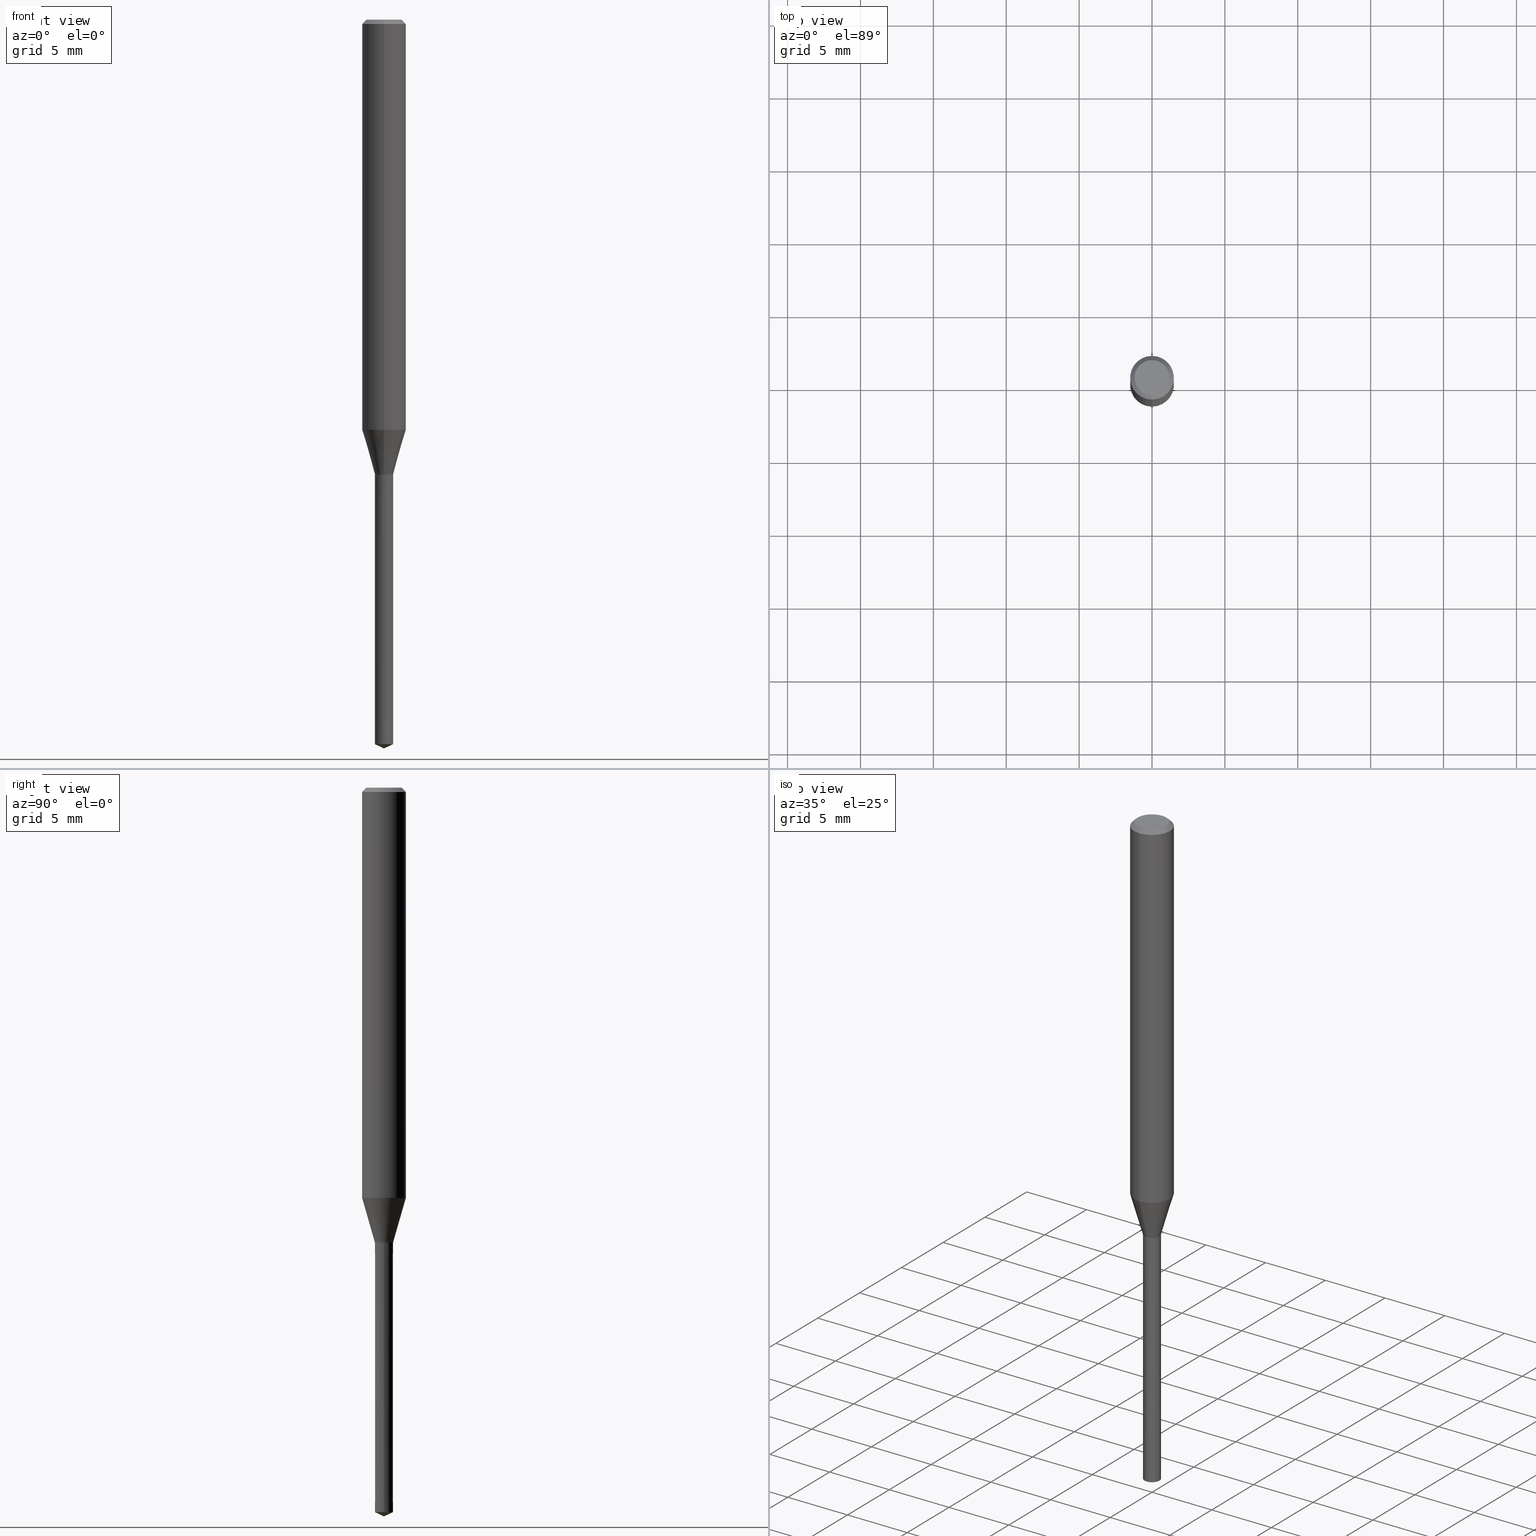
[diagram: canonical four-view strip — front | top / right | iso, engineering-drawing reading convention]
A machine part, canonical four-view strip (front | top / right | iso — engineering-drawing reading convention). The complete STEP part file that produces these views, byte-faithful:
ISO-10303-21;
HEADER;
FILE_DESCRIPTION(('no description'),'unknown implementation level');
FILE_NAME('UTDLX2125-188-Huellk.stp','  ',('CIMSOURCE GmbH'),('CADClick - KiM GmbH - www.kimweb.de'),'unknown preprocess','ACIS','unknown authorization');
FILE_SCHEMA(('automotive_design'));
ENDSEC;
DATA;
#1=MECHANICAL_DESIGN_GEOMETRIC_PRESENTATION_REPRESENTATION(' ',(#14,#15,#16,#17,#18,#19,#20,#21,#22,#23,#24,#25,#26,#27,#28,#29,#30,#31,#32,#33,#34,#35,#36,#37,#38,#39,#40,#41,#42,#43,#44,#45,#46,#47,#48,#49,#50,#51,#52,#53,#54,#55,#56,#57,#58,#59,#60,#61,#62,#63,#64,#65,#66,#67,#68,#69,#70,#71),#10);
#2=PRODUCT_DEFINITION_CONTEXT('',#72,'design');
#3=APPLICATION_PROTOCOL_DEFINITION('INTERNATIONAL STANDARD','automotive_design',1994,#72);
#4=PRODUCT_CATEGORY_RELATIONSHIP('NONE','NONE',#73,#74);
#5=SHAPE_DEFINITION_REPRESENTATION(#75,#76);
#6=PRODUCT_DEFINITION_CONTEXT('',#77,'design');
#7=APPLICATION_PROTOCOL_DEFINITION('INTERNATIONAL STANDARD','automotive_design',1994,#77);
#8=PRODUCT_CATEGORY_RELATIONSHIP('NONE','NONE',#78,#79);
#9=SHAPE_DEFINITION_REPRESENTATION(#80,#81);
#10= (GEOMETRIC_REPRESENTATION_CONTEXT(3)GLOBAL_UNCERTAINTY_ASSIGNED_CONTEXT((#84))GLOBAL_UNIT_ASSIGNED_CONTEXT((#86,#87,#88))REPRESENTATION_CONTEXT('NONE','WORKSPACE'));
#14=STYLED_ITEM('',(#90),#91);
#15=STYLED_ITEM('',(#92),#93);
#16=STYLED_ITEM('',(#94),#95);
#17=STYLED_ITEM('',(#96),#97);
#18=STYLED_ITEM('',(#98),#99);
#19=STYLED_ITEM('',(#100),#101);
#20=STYLED_ITEM('',(#102),#103);
#21=STYLED_ITEM('',(#104),#105);
#22=STYLED_ITEM('',(#106),#107);
#23=STYLED_ITEM('',(#108),#109);
#24=STYLED_ITEM('',(#110),#111);
#25=STYLED_ITEM('',(#112),#113);
#26=STYLED_ITEM('',(#114),#115);
#27=STYLED_ITEM('',(#116),#117);
#28=STYLED_ITEM('',(#118),#119);
#29=STYLED_ITEM('',(#120),#121);
#30=STYLED_ITEM('',(#122),#123);
#31=STYLED_ITEM('',(#124),#125);
#32=STYLED_ITEM('',(#126),#127);
#33=STYLED_ITEM('',(#128),#129);
#34=STYLED_ITEM('',(#130),#131);
#35=STYLED_ITEM('',(#132),#133);
#36=STYLED_ITEM('',(#134),#135);
#37=STYLED_ITEM('',(#136),#137);
#38=STYLED_ITEM('',(#138),#139);
#39=STYLED_ITEM('',(#140),#141);
#40=STYLED_ITEM('',(#142),#143);
#41=STYLED_ITEM('',(#144),#145);
#42=STYLED_ITEM('',(#146),#147);
#43=STYLED_ITEM('',(#148),#149);
#44=STYLED_ITEM('',(#150),#151);
#45=STYLED_ITEM('',(#152),#153);
#46=STYLED_ITEM('',(#154),#155);
#47=STYLED_ITEM('',(#156),#157);
#48=STYLED_ITEM('',(#158),#159);
#49=STYLED_ITEM('',(#160),#161);
#50=STYLED_ITEM('',(#162),#163);
#51=STYLED_ITEM('',(#164),#165);
#52=STYLED_ITEM('',(#166),#167);
#53=STYLED_ITEM('',(#168),#169);
#54=STYLED_ITEM('',(#170),#171);
#55=STYLED_ITEM('',(#172),#173);
#56=STYLED_ITEM('',(#174),#175);
#57=STYLED_ITEM('',(#176),#177);
#58=STYLED_ITEM('',(#178),#179);
#59=STYLED_ITEM('',(#180),#181);
#60=STYLED_ITEM('',(#182),#183);
#61=STYLED_ITEM('',(#184),#185);
#62=STYLED_ITEM('',(#186),#187);
#63=STYLED_ITEM('',(#188),#189);
#64=STYLED_ITEM('',(#190),#191);
#65=STYLED_ITEM('',(#192),#193);
#66=STYLED_ITEM('',(#194),#195);
#67=STYLED_ITEM('',(#196),#197);
#68=STYLED_ITEM('',(#198),#199);
#69=STYLED_ITEM('',(#200),#201);
#70=STYLED_ITEM('',(#202),#203);
#71=STYLED_ITEM('',(#204),#205);
#72=APPLICATION_CONTEXT(' ');
#73=PRODUCT_CATEGORY('part','NONE');
#74=PRODUCT_RELATED_PRODUCT_CATEGORY('detail',' ',(#206));
#75=PRODUCT_DEFINITION_SHAPE('NONE','NONE',#207);
#76=ADVANCED_BREP_SHAPE_REPRESENTATION('1',(#123,#208),#10);
#77=APPLICATION_CONTEXT(' ');
#78=PRODUCT_CATEGORY('part','NONE');
#79=PRODUCT_RELATED_PRODUCT_CATEGORY('detail',' ',(#209));
#80=PRODUCT_DEFINITION_SHAPE('NONE','NONE',#210);
#81=ADVANCED_BREP_SHAPE_REPRESENTATION('2',(#151,#211),#10);
#84=UNCERTAINTY_MEASURE_WITH_UNIT(LENGTH_MEASURE(1.0E-006),#86,'','');
#86= (CONVERSION_BASED_UNIT('MILLIMETRE',#214)LENGTH_UNIT()NAMED_UNIT(#217));
#87= (NAMED_UNIT(#219)PLANE_ANGLE_UNIT()SI_UNIT($,.RADIAN.));
#88= (NAMED_UNIT(#219)SOLID_ANGLE_UNIT()SI_UNIT($,.STERADIAN.));
#90=PRESENTATION_STYLE_ASSIGNMENT((#225));
#91=ADVANCED_FACE('',(#226),#227,.T.);
#92=PRESENTATION_STYLE_ASSIGNMENT((#228));
#93=EDGE_CURVE('',#191,#111,#229,.T.);
#94=PRESENTATION_STYLE_ASSIGNMENT((#230));
#95=EDGE_CURVE('',#131,#133,#231,.T.);
#96=PRESENTATION_STYLE_ASSIGNMENT((#232));
#97=ADVANCED_FACE('',(#233),#234,.T.);
#98=PRESENTATION_STYLE_ASSIGNMENT((#235));
#99=EDGE_CURVE('',#115,#131,#236,.T.);
#100=PRESENTATION_STYLE_ASSIGNMENT((#237));
#101=VERTEX_POINT('',#238);
#102=PRESENTATION_STYLE_ASSIGNMENT((#239));
#103=VERTEX_POINT('',#240);
#104=PRESENTATION_STYLE_ASSIGNMENT((#241));
#105=ADVANCED_FACE('',(#242),#243,.T.);
#106=PRESENTATION_STYLE_ASSIGNMENT((#244));
#107=EDGE_CURVE('',#149,#103,#245,.T.);
#108=PRESENTATION_STYLE_ASSIGNMENT((#246));
#109=ADVANCED_FACE('',(#247),#248,.T.);
#110=PRESENTATION_STYLE_ASSIGNMENT((#249));
#111=VERTEX_POINT('',#250);
#112=PRESENTATION_STYLE_ASSIGNMENT((#251));
#113=ADVANCED_FACE('',(#252),#253,.T.);
#114=PRESENTATION_STYLE_ASSIGNMENT((#254));
#115=VERTEX_POINT('',#255);
#116=PRESENTATION_STYLE_ASSIGNMENT((#256));
#117=EDGE_CURVE('',#115,#193,#257,.T.);
#118=PRESENTATION_STYLE_ASSIGNMENT((#258));
#119=VERTEX_POINT('',#259);
#120=PRESENTATION_STYLE_ASSIGNMENT((#260));
#121=EDGE_CURVE('',#203,#115,#261,.T.);
#122=PRESENTATION_STYLE_ASSIGNMENT((#262));
#123=MANIFOLD_SOLID_BREP('1',#263);
#124=PRESENTATION_STYLE_ASSIGNMENT((#264));
#125=EDGE_CURVE('',#205,#179,#265,.T.);
#126=PRESENTATION_STYLE_ASSIGNMENT((#266));
#127=EDGE_CURVE('',#179,#205,#267,.T.);
#128=PRESENTATION_STYLE_ASSIGNMENT((#268));
#129=EDGE_CURVE('',#103,#111,#269,.T.);
#130=PRESENTATION_STYLE_ASSIGNMENT((#270));
#131=VERTEX_POINT('',#271);
#132=PRESENTATION_STYLE_ASSIGNMENT((#272));
#133=VERTEX_POINT('',#273);
#134=PRESENTATION_STYLE_ASSIGNMENT((#274));
#135=EDGE_CURVE('',#205,#203,#275,.T.);
#136=PRESENTATION_STYLE_ASSIGNMENT((#276));
#137=ADVANCED_FACE('',(#277),#278,.T.);
#138=PRESENTATION_STYLE_ASSIGNMENT((#279));
#139=EDGE_CURVE('',#119,#203,#280,.T.);
#140=PRESENTATION_STYLE_ASSIGNMENT((#281));
#141=ADVANCED_FACE('',(#282),#283,.T.);
#142=PRESENTATION_STYLE_ASSIGNMENT((#284));
#143=EDGE_CURVE('',#181,#131,#285,.T.);
#144=PRESENTATION_STYLE_ASSIGNMENT((#286));
#145=EDGE_CURVE('',#111,#191,#287,.T.);
#146=PRESENTATION_STYLE_ASSIGNMENT((#288));
#147=EDGE_CURVE('',#181,#193,#289,.T.);
#148=PRESENTATION_STYLE_ASSIGNMENT((#290));
#149=VERTEX_POINT('',#291);
#150=PRESENTATION_STYLE_ASSIGNMENT((#292));
#151=MANIFOLD_SOLID_BREP('2',#293);
#152=PRESENTATION_STYLE_ASSIGNMENT((#294));
#153=ADVANCED_FACE('',(#295),#296,.T.);
#154=PRESENTATION_STYLE_ASSIGNMENT((#297));
#155=EDGE_CURVE('',#191,#149,#298,.T.);
#156=PRESENTATION_STYLE_ASSIGNMENT((#299));
#157=EDGE_CURVE('',#193,#115,#300,.T.);
#158=PRESENTATION_STYLE_ASSIGNMENT((#301));
#159=ADVANCED_FACE('',(#302),#303,.T.);
#160=PRESENTATION_STYLE_ASSIGNMENT((#304));
#161=EDGE_CURVE('',#103,#149,#305,.T.);
#162=PRESENTATION_STYLE_ASSIGNMENT((#306));
#163=ADVANCED_FACE('',(#307),#308,.T.);
#164=PRESENTATION_STYLE_ASSIGNMENT((#309));
#165=ADVANCED_FACE('',(#310),#311,.T.);
#166=PRESENTATION_STYLE_ASSIGNMENT((#312));
#167=EDGE_CURVE('',#131,#181,#313,.T.);
#168=PRESENTATION_STYLE_ASSIGNMENT((#314));
#169=ADVANCED_FACE('',(#315),#316,.T.);
#170=PRESENTATION_STYLE_ASSIGNMENT((#317));
#171=ADVANCED_FACE('',(#318),#319,.T.);
#172=PRESENTATION_STYLE_ASSIGNMENT((#320));
#173=EDGE_CURVE('',#133,#101,#321,.T.);
#174=PRESENTATION_STYLE_ASSIGNMENT((#322));
#175=VERTEX_POINT('',#323);
#176=PRESENTATION_STYLE_ASSIGNMENT((#324));
#177=EDGE_CURVE('',#111,#175,#325,.T.);
#178=PRESENTATION_STYLE_ASSIGNMENT((#326));
#179=VERTEX_POINT('',#327);
#180=PRESENTATION_STYLE_ASSIGNMENT((#328));
#181=VERTEX_POINT('',#329);
#182=PRESENTATION_STYLE_ASSIGNMENT((#330));
#183=EDGE_CURVE('',#203,#119,#331,.T.);
#184=PRESENTATION_STYLE_ASSIGNMENT((#332));
#185=EDGE_CURVE('',#193,#119,#333,.T.);
#186=PRESENTATION_STYLE_ASSIGNMENT((#334));
#187=ADVANCED_FACE('',(#335),#336,.T.);
#188=PRESENTATION_STYLE_ASSIGNMENT((#337));
#189=EDGE_CURVE('',#101,#133,#338,.T.);
#190=PRESENTATION_STYLE_ASSIGNMENT((#339));
#191=VERTEX_POINT('',#340);
#192=PRESENTATION_STYLE_ASSIGNMENT((#341));
#193=VERTEX_POINT('',#342);
#194=PRESENTATION_STYLE_ASSIGNMENT((#343));
#195=EDGE_CURVE('',#119,#179,#344,.T.);
#196=PRESENTATION_STYLE_ASSIGNMENT((#345));
#197=EDGE_CURVE('',#175,#191,#346,.T.);
#198=PRESENTATION_STYLE_ASSIGNMENT((#347));
#199=ADVANCED_FACE('',(#348),#349,.T.);
#200=PRESENTATION_STYLE_ASSIGNMENT((#350));
#201=EDGE_CURVE('',#101,#181,#351,.T.);
#202=PRESENTATION_STYLE_ASSIGNMENT((#352));
#203=VERTEX_POINT('',#353);
#204=PRESENTATION_STYLE_ASSIGNMENT((#354));
#205=VERTEX_POINT('',#355);
#206=PRODUCT('1','1','PART-1-DESC',(#356));
#207=PRODUCT_DEFINITION('NONE','NONE',#357,#2);
#208=AXIS2_PLACEMENT_3D('',#358,#359,#360);
#209=PRODUCT('2','2','PART-2-DESC',(#361));
#210=PRODUCT_DEFINITION('NONE','NONE',#362,#6);
#211=AXIS2_PLACEMENT_3D('',#363,#364,#365);
#214=LENGTH_MEASURE_WITH_UNIT(LENGTH_MEASURE(1.0),#366);
#217=DIMENSIONAL_EXPONENTS(1.0,0.0,0.0,0.0,0.0,0.0,0.0);
#219=DIMENSIONAL_EXPONENTS(0.0,0.0,0.0,0.0,0.0,0.0,0.0);
#225=SURFACE_STYLE_USAGE(.BOTH.,#367);
#226=FACE_OUTER_BOUND('',#368,.T.);
#227=CONICAL_SURFACE('',#369,0.62525,0.52359877559836);
#228=CURVE_STYLE('',#370,POSITIVE_LENGTH_MEASURE(1.0E-006),#371);
#229=CIRCLE('',#372,0.625);
#230=CURVE_STYLE('',#373,POSITIVE_LENGTH_MEASURE(1.0E-006),#374);
#231=LINE('',#375,#376);
#232=SURFACE_STYLE_USAGE(.BOTH.,#377);
#233=FACE_OUTER_BOUND('',#378,.T.);
#234=CONICAL_SURFACE('',#379,1.0625,0.279370266681244);
#235=CURVE_STYLE('',#380,POSITIVE_LENGTH_MEASURE(1.0E-006),#381);
#236=LINE('',#382,#383);
#237=POINT_STYLE(' ',#384,POSITIVE_LENGTH_MEASURE(1.0E-006),#385);
#238=CARTESIAN_POINT('',(7.65991274315897E-017,-0.6255,-31.2));
#239=POINT_STYLE(' ',#386,POSITIVE_LENGTH_MEASURE(1.0E-006),#387);
#240=CARTESIAN_POINT('',(-0.626,0.0,-31.2));
#241=SURFACE_STYLE_USAGE(.BOTH.,#388);
#242=FACE_OUTER_BOUND('',#389,.T.);
#243=CONICAL_SURFACE('',#390,1.35,0.785398163397447);
#244=CURVE_STYLE('',#391,POSITIVE_LENGTH_MEASURE(1.0E-006),#392);
#245=CIRCLE('',#393,0.626);
#246=SURFACE_STYLE_USAGE(.BOTH.,#394);
#247=FACE_OUTER_BOUND('',#395,.T.);
#248=PLANE('',#396);
#249=POINT_STYLE(' ',#397,POSITIVE_LENGTH_MEASURE(1.0E-006),#398);
#250=CARTESIAN_POINT('',(-0.625,0.0,-49.70855771));
#251=SURFACE_STYLE_USAGE(.BOTH.,#399);
#252=FACE_OUTER_BOUND('',#400,.T.);
#253=CYLINDRICAL_SURFACE('',#401,1.5);
#254=POINT_STYLE(' ',#402,POSITIVE_LENGTH_MEASURE(1.0E-006),#403);
#255=CARTESIAN_POINT('',(0.0,1.5,-28.149));
#256=CURVE_STYLE('',#404,POSITIVE_LENGTH_MEASURE(1.0E-006),#405);
#257=CIRCLE('',#406,1.5);
#258=POINT_STYLE(' ',#407,POSITIVE_LENGTH_MEASURE(1.0E-006),#408);
#259=CARTESIAN_POINT('',(1.83690953073357E-016,-1.5,-0.300000000000001));
#260=CURVE_STYLE('',#409,POSITIVE_LENGTH_MEASURE(1.0E-006),#410);
#261=LINE('',#411,#412);
#262=SURFACE_STYLE_USAGE(.BOTH.,#413);
#263=CLOSED_SHELL('',(#165,#199,#113,#159,#171,#105,#187,#97,#91,#163));
#264=CURVE_STYLE('',#414,POSITIVE_LENGTH_MEASURE(1.0E-006),#415);
#265=CIRCLE('',#416,1.2);
#266=CURVE_STYLE('',#417,POSITIVE_LENGTH_MEASURE(1.0E-006),#418);
#267=CIRCLE('',#419,1.2);
#268=CURVE_STYLE('',#420,POSITIVE_LENGTH_MEASURE(1.0E-006),#421);
#269=LINE('',#422,#423);
#270=POINT_STYLE(' ',#424,POSITIVE_LENGTH_MEASURE(1.0E-006),#425);
#271=CARTESIAN_POINT('',(0.0,0.625,-31.1991339745962));
#272=POINT_STYLE(' ',#426,POSITIVE_LENGTH_MEASURE(1.0E-006),#427);
#273=CARTESIAN_POINT('',(0.0,0.6255,-31.2));
#274=CURVE_STYLE('',#428,POSITIVE_LENGTH_MEASURE(1.0E-006),#429);
#275=LINE('',#430,#431);
#276=SURFACE_STYLE_USAGE(.BOTH.,#432);
#277=FACE_OUTER_BOUND('',#433,.T.);
#278=CONICAL_SURFACE('',#434,0.3125,1.13446400899527);
#279=CURVE_STYLE('',#435,POSITIVE_LENGTH_MEASURE(1.0E-006),#436);
#280=CIRCLE('',#437,1.5);
#281=SURFACE_STYLE_USAGE(.BOTH.,#438);
#282=FACE_OUTER_BOUND('',#439,.T.);
#283=CONICAL_SURFACE('',#440,0.3125,1.13446400899527);
#284=CURVE_STYLE('',#441,POSITIVE_LENGTH_MEASURE(1.0E-006),#442);
#285=CIRCLE('',#443,0.625);
#286=CURVE_STYLE('',#444,POSITIVE_LENGTH_MEASURE(1.0E-006),#445);
#287=CIRCLE('',#446,0.625);
#288=CURVE_STYLE('',#447,POSITIVE_LENGTH_MEASURE(1.0E-006),#448);
#289=LINE('',#449,#450);
#290=POINT_STYLE(' ',#451,POSITIVE_LENGTH_MEASURE(1.0E-006),#452);
#291=CARTESIAN_POINT('',(0.626,7.66603577492808E-017,-31.2));
#292=SURFACE_STYLE_USAGE(.BOTH.,#453);
#293=CLOSED_SHELL('',(#137,#153,#109,#169,#141));
#294=SURFACE_STYLE_USAGE(.BOTH.,#454);
#295=FACE_OUTER_BOUND('',#455,.T.);
#296=CONICAL_SURFACE('',#456,0.6255,5.40290612966922E-005);
#297=CURVE_STYLE('',#457,POSITIVE_LENGTH_MEASURE(1.0E-006),#458);
#298=LINE('',#459,#460);
#299=CURVE_STYLE('',#461,POSITIVE_LENGTH_MEASURE(1.0E-006),#462);
#300=CIRCLE('',#463,1.5);
#301=SURFACE_STYLE_USAGE(.BOTH.,#464);
#302=FACE_OUTER_BOUND('',#465,.T.);
#303=CONICAL_SURFACE('',#466,1.35,0.785398163397447);
#304=CURVE_STYLE('',#467,POSITIVE_LENGTH_MEASURE(1.0E-006),#468);
#305=CIRCLE('',#469,0.626);
#306=SURFACE_STYLE_USAGE(.BOTH.,#470);
#307=FACE_OUTER_BOUND('',#471,.T.);
#308=PLANE('',#472);
#309=SURFACE_STYLE_USAGE(.BOTH.,#473);
#310=FACE_OUTER_BOUND('',#474,.T.);
#311=CONICAL_SURFACE('',#475,0.62525,0.52359877559836);
#312=CURVE_STYLE('',#476,POSITIVE_LENGTH_MEASURE(1.0E-006),#477);
#313=CIRCLE('',#478,0.625);
#314=SURFACE_STYLE_USAGE(.BOTH.,#479);
#315=FACE_OUTER_BOUND('',#480,.T.);
#316=CONICAL_SURFACE('',#481,0.6255,5.40290612966922E-005);
#317=SURFACE_STYLE_USAGE(.BOTH.,#482);
#318=FACE_OUTER_BOUND('',#483,.T.);
#319=PLANE('',#484);
#320=CURVE_STYLE('',#485,POSITIVE_LENGTH_MEASURE(1.0E-006),#486);
#321=CIRCLE('',#487,0.6255);
#322=POINT_STYLE(' ',#488,POSITIVE_LENGTH_MEASURE(1.0E-006),#489);
#323=CARTESIAN_POINT('',(0.0,0.0,-50.0));
#324=CURVE_STYLE('',#490,POSITIVE_LENGTH_MEASURE(1.0E-006),#491);
#325=LINE('',#492,#493);
#326=POINT_STYLE(' ',#494,POSITIVE_LENGTH_MEASURE(1.0E-006),#495);
#327=CARTESIAN_POINT('',(1.46952762458685E-016,-1.2,0.0));
#328=POINT_STYLE(' ',#496,POSITIVE_LENGTH_MEASURE(1.0E-006),#497);
#329=CARTESIAN_POINT('',(7.65378971138986E-017,-0.625,-31.1991339745962));
#330=CURVE_STYLE('',#498,POSITIVE_LENGTH_MEASURE(1.0E-006),#499);
#331=CIRCLE('',#500,1.5);
#332=CURVE_STYLE('',#501,POSITIVE_LENGTH_MEASURE(1.0E-006),#502);
#333=LINE('',#503,#504);
#334=SURFACE_STYLE_USAGE(.BOTH.,#505);
#335=FACE_OUTER_BOUND('',#506,.T.);
#336=CYLINDRICAL_SURFACE('',#507,1.5);
#337=CURVE_STYLE('',#508,POSITIVE_LENGTH_MEASURE(1.0E-006),#509);
#338=CIRCLE('',#510,0.6255);
#339=POINT_STYLE(' ',#511,POSITIVE_LENGTH_MEASURE(1.0E-006),#512);
#340=CARTESIAN_POINT('',(0.625,7.65378971138986E-017,-49.70855771));
#341=POINT_STYLE(' ',#513,POSITIVE_LENGTH_MEASURE(1.0E-006),#514);
#342=CARTESIAN_POINT('',(1.83690953073357E-016,-1.5,-28.149));
#343=CURVE_STYLE('',#515,POSITIVE_LENGTH_MEASURE(1.0E-006),#516);
#344=LINE('',#517,#518);
#345=CURVE_STYLE('',#519,POSITIVE_LENGTH_MEASURE(1.0E-006),#520);
#346=LINE('',#521,#522);
#347=SURFACE_STYLE_USAGE(.BOTH.,#523);
#348=FACE_OUTER_BOUND('',#524,.T.);
#349=CONICAL_SURFACE('',#525,1.0625,0.279370266681244);
#350=CURVE_STYLE('',#526,POSITIVE_LENGTH_MEASURE(1.0E-006),#527);
#351=LINE('',#528,#529);
#352=POINT_STYLE(' ',#530,POSITIVE_LENGTH_MEASURE(1.0E-006),#531);
#353=CARTESIAN_POINT('',(0.0,1.5,-0.300000000000001));
#354=POINT_STYLE(' ',#532,POSITIVE_LENGTH_MEASURE(1.0E-006),#533);
#355=CARTESIAN_POINT('',(0.0,1.2,0.0));
#356=PRODUCT_CONTEXT('',#72,'mechanical');
#357=PRODUCT_DEFINITION_FORMATION_WITH_SPECIFIED_SOURCE(' ','NONE',#206,.NOT_KNOWN.);
#358=CARTESIAN_POINT('',(0.0,0.0,0.0));
#359=DIRECTION('',(0.0,0.0,1.0));
#360=DIRECTION('',(1.0,0.0,0.0));
#361=PRODUCT_CONTEXT('',#77,'mechanical');
#362=PRODUCT_DEFINITION_FORMATION_WITH_SPECIFIED_SOURCE(' ','NONE',#209,.NOT_KNOWN.);
#363=CARTESIAN_POINT('',(0.0,0.0,0.0));
#364=DIRECTION('',(0.0,0.0,1.0));
#365=DIRECTION('',(1.0,0.0,0.0));
#366= (NAMED_UNIT(#217)LENGTH_UNIT()SI_UNIT(.MILLI.,.METRE.));
#367=SURFACE_SIDE_STYLE('',(#535));
#368=EDGE_LOOP('',(#536,#537,#538,#539));
#369=AXIS2_PLACEMENT_3D('',#540,#541,#542);
#370=DRAUGHTING_PRE_DEFINED_CURVE_FONT('continuous');
#371=COLOUR_RGB('',0.800000011920929,0.800000011920929,0.800000011920929);
#372=AXIS2_PLACEMENT_3D('',#543,#544,#545);
#373=DRAUGHTING_PRE_DEFINED_CURVE_FONT('continuous');
#374=COLOUR_RGB('',0.498039215803146,0.498039215803146,0.498039215803146);
#375=CARTESIAN_POINT('',(-7.65685122727442E-017,0.62525,-31.1995669872981));
#376=VECTOR('',#546,1.0);
#377=SURFACE_SIDE_STYLE('',(#547));
#378=EDGE_LOOP('',(#548,#549,#550,#551));
#379=AXIS2_PLACEMENT_3D('',#552,#553,#554);
#380=DRAUGHTING_PRE_DEFINED_CURVE_FONT('continuous');
#381=COLOUR_RGB('',0.498039215803146,0.498039215803146,0.498039215803146);
#382=CARTESIAN_POINT('',(-1.30114425093628E-016,1.0625,-29.6740669872981));
#383=VECTOR('',#555,1.0);
#384=PRE_DEFINED_MARKER('');
#385=COLOUR_RGB('',0.498039215803146,0.498039215803146,0.498039215803146);
#386=PRE_DEFINED_MARKER('');
#387=COLOUR_RGB('',0.800000011920929,0.800000011920929,0.800000011920929);
#388=SURFACE_SIDE_STYLE('',(#556));
#389=EDGE_LOOP('',(#557,#558,#559,#560));
#390=AXIS2_PLACEMENT_3D('',#561,#562,#563);
#391=DRAUGHTING_PRE_DEFINED_CURVE_FONT('continuous');
#392=COLOUR_RGB('',0.800000011920929,0.800000011920929,0.800000011920929);
#393=AXIS2_PLACEMENT_3D('',#564,#565,#566);
#394=SURFACE_SIDE_STYLE('',(#567));
#395=EDGE_LOOP('',(#568,#569));
#396=AXIS2_PLACEMENT_3D('',#570,#571,#572);
#397=PRE_DEFINED_MARKER('');
#398=COLOUR_RGB('',0.800000011920929,0.800000011920929,0.800000011920929);
#399=SURFACE_SIDE_STYLE('',(#573));
#400=EDGE_LOOP('',(#574,#575,#576,#577));
#401=AXIS2_PLACEMENT_3D('',#578,#579,#580);
#402=PRE_DEFINED_MARKER('');
#403=COLOUR_RGB('',0.498039215803146,0.498039215803146,0.498039215803146);
#404=DRAUGHTING_PRE_DEFINED_CURVE_FONT('continuous');
#405=COLOUR_RGB('',0.498039215803146,0.498039215803146,0.498039215803146);
#406=AXIS2_PLACEMENT_3D('',#581,#582,#583);
#407=PRE_DEFINED_MARKER('');
#408=COLOUR_RGB('',0.498039215803146,0.498039215803146,0.498039215803146);
#409=DRAUGHTING_PRE_DEFINED_CURVE_FONT('continuous');
#410=COLOUR_RGB('',0.498039215803146,0.498039215803146,0.498039215803146);
#411=CARTESIAN_POINT('',(-1.83690953073357E-016,1.5,-14.2245));
#412=VECTOR('',#584,1.0);
#413=SURFACE_SIDE_STYLE('',(#585));
#414=DRAUGHTING_PRE_DEFINED_CURVE_FONT('continuous');
#415=COLOUR_RGB('',0.498039215803146,0.498039215803146,0.498039215803146);
#416=AXIS2_PLACEMENT_3D('',#586,#587,#588);
#417=DRAUGHTING_PRE_DEFINED_CURVE_FONT('continuous');
#418=COLOUR_RGB('',0.498039215803146,0.498039215803146,0.498039215803146);
#419=AXIS2_PLACEMENT_3D('',#589,#590,#591);
#420=DRAUGHTING_PRE_DEFINED_CURVE_FONT('continuous');
#421=COLOUR_RGB('',0.800000011920929,0.800000011920929,0.800000011920929);
#422=CARTESIAN_POINT('',(-0.6255,-7.65991274315897E-017,-40.454278855));
#423=VECTOR('',#592,1.0);
#424=PRE_DEFINED_MARKER('');
#425=COLOUR_RGB('',0.498039215803146,0.498039215803146,0.498039215803146);
#426=PRE_DEFINED_MARKER('');
#427=COLOUR_RGB('',0.498039215803146,0.498039215803146,0.498039215803146);
#428=DRAUGHTING_PRE_DEFINED_CURVE_FONT('continuous');
#429=COLOUR_RGB('',0.498039215803146,0.498039215803146,0.498039215803146);
#430=CARTESIAN_POINT('',(-1.65321857766021E-016,1.35,-0.150000000000002));
#431=VECTOR('',#593,1.0);
#432=SURFACE_SIDE_STYLE('',(#594));
#433=EDGE_LOOP('',(#595,#596,#597));
#434=AXIS2_PLACEMENT_3D('',#598,#599,#600);
#435=DRAUGHTING_PRE_DEFINED_CURVE_FONT('continuous');
#436=COLOUR_RGB('',0.498039215803146,0.498039215803146,0.498039215803146);
#437=AXIS2_PLACEMENT_3D('',#601,#602,#603);
#438=SURFACE_SIDE_STYLE('',(#604));
#439=EDGE_LOOP('',(#605,#606,#607));
#440=AXIS2_PLACEMENT_3D('',#608,#609,#610);
#441=DRAUGHTING_PRE_DEFINED_CURVE_FONT('continuous');
#442=COLOUR_RGB('',0.498039215803146,0.498039215803146,0.498039215803146);
#443=AXIS2_PLACEMENT_3D('',#611,#612,#613);
#444=DRAUGHTING_PRE_DEFINED_CURVE_FONT('continuous');
#445=COLOUR_RGB('',0.800000011920929,0.800000011920929,0.800000011920929);
#446=AXIS2_PLACEMENT_3D('',#614,#615,#616);
#447=DRAUGHTING_PRE_DEFINED_CURVE_FONT('continuous');
#448=COLOUR_RGB('',0.498039215803146,0.498039215803146,0.498039215803146);
#449=CARTESIAN_POINT('',(1.30114425093628E-016,-1.0625,-29.6740669872981));
#450=VECTOR('',#617,1.0);
#451=PRE_DEFINED_MARKER('');
#452=COLOUR_RGB('',0.800000011920929,0.800000011920929,0.800000011920929);
#453=SURFACE_SIDE_STYLE('',(#618));
#454=SURFACE_SIDE_STYLE('',(#619));
#455=EDGE_LOOP('',(#620,#621,#622,#623));
#456=AXIS2_PLACEMENT_3D('',#624,#625,#626);
#457=DRAUGHTING_PRE_DEFINED_CURVE_FONT('continuous');
#458=COLOUR_RGB('',0.800000011920929,0.800000011920929,0.800000011920929);
#459=CARTESIAN_POINT('',(0.6255,7.65991274315897E-017,-40.454278855));
#460=VECTOR('',#627,1.0);
#461=DRAUGHTING_PRE_DEFINED_CURVE_FONT('continuous');
#462=COLOUR_RGB('',0.498039215803146,0.498039215803146,0.498039215803146);
#463=AXIS2_PLACEMENT_3D('',#628,#629,#630);
#464=SURFACE_SIDE_STYLE('',(#631));
#465=EDGE_LOOP('',(#632,#633,#634,#635));
#466=AXIS2_PLACEMENT_3D('',#636,#637,#638);
#467=DRAUGHTING_PRE_DEFINED_CURVE_FONT('continuous');
#468=COLOUR_RGB('',0.800000011920929,0.800000011920929,0.800000011920929);
#469=AXIS2_PLACEMENT_3D('',#639,#640,#641);
#470=SURFACE_SIDE_STYLE('',(#642));
#471=EDGE_LOOP('',(#643,#644));
#472=AXIS2_PLACEMENT_3D('',#645,#646,#647);
#473=SURFACE_SIDE_STYLE('',(#648));
#474=EDGE_LOOP('',(#649,#650,#651,#652));
#475=AXIS2_PLACEMENT_3D('',#653,#654,#655);
#476=DRAUGHTING_PRE_DEFINED_CURVE_FONT('continuous');
#477=COLOUR_RGB('',0.498039215803146,0.498039215803146,0.498039215803146);
#478=AXIS2_PLACEMENT_3D('',#656,#657,#658);
#479=SURFACE_SIDE_STYLE('',(#659));
#480=EDGE_LOOP('',(#660,#661,#662,#663));
#481=AXIS2_PLACEMENT_3D('',#664,#665,#666);
#482=SURFACE_SIDE_STYLE('',(#667));
#483=EDGE_LOOP('',(#668,#669));
#484=AXIS2_PLACEMENT_3D('',#670,#671,#672);
#485=DRAUGHTING_PRE_DEFINED_CURVE_FONT('continuous');
#486=COLOUR_RGB('',0.498039215803146,0.498039215803146,0.498039215803146);
#487=AXIS2_PLACEMENT_3D('',#673,#674,#675);
#488=PRE_DEFINED_MARKER('');
#489=COLOUR_RGB('',0.800000011920929,0.800000011920929,0.800000011920929);
#490=DRAUGHTING_PRE_DEFINED_CURVE_FONT('continuous');
#491=COLOUR_RGB('',0.800000011920929,0.800000011920929,0.800000011920929);
#492=CARTESIAN_POINT('',(-0.3125,-3.82689485569493E-017,-49.854278855));
#493=VECTOR('',#676,1.0);
#494=PRE_DEFINED_MARKER('');
#495=COLOUR_RGB('',0.498039215803146,0.498039215803146,0.498039215803146);
#496=PRE_DEFINED_MARKER('');
#497=COLOUR_RGB('',0.498039215803146,0.498039215803146,0.498039215803146);
#498=DRAUGHTING_PRE_DEFINED_CURVE_FONT('continuous');
#499=COLOUR_RGB('',0.498039215803146,0.498039215803146,0.498039215803146);
#500=AXIS2_PLACEMENT_3D('',#677,#678,#679);
#501=DRAUGHTING_PRE_DEFINED_CURVE_FONT('continuous');
#502=COLOUR_RGB('',0.498039215803146,0.498039215803146,0.498039215803146);
#503=CARTESIAN_POINT('',(1.83690953073357E-016,-1.5,-14.2245));
#504=VECTOR('',#680,1.0);
#505=SURFACE_SIDE_STYLE('',(#681));
#506=EDGE_LOOP('',(#682,#683,#684,#685));
#507=AXIS2_PLACEMENT_3D('',#686,#687,#688);
#508=DRAUGHTING_PRE_DEFINED_CURVE_FONT('continuous');
#509=COLOUR_RGB('',0.498039215803146,0.498039215803146,0.498039215803146);
#510=AXIS2_PLACEMENT_3D('',#689,#690,#691);
#511=PRE_DEFINED_MARKER('');
#512=COLOUR_RGB('',0.800000011920929,0.800000011920929,0.800000011920929);
#513=PRE_DEFINED_MARKER('');
#514=COLOUR_RGB('',0.498039215803146,0.498039215803146,0.498039215803146);
#515=DRAUGHTING_PRE_DEFINED_CURVE_FONT('continuous');
#516=COLOUR_RGB('',0.498039215803146,0.498039215803146,0.498039215803146);
#517=CARTESIAN_POINT('',(1.65321857766021E-016,-1.35,-0.150000000000002));
#518=VECTOR('',#692,1.0);
#519=DRAUGHTING_PRE_DEFINED_CURVE_FONT('continuous');
#520=COLOUR_RGB('',0.800000011920929,0.800000011920929,0.800000011920929);
#521=CARTESIAN_POINT('',(0.3125,3.82689485569493E-017,-49.854278855));
#522=VECTOR('',#693,1.0);
#523=SURFACE_SIDE_STYLE('',(#694));
#524=EDGE_LOOP('',(#695,#696,#697,#698));
#525=AXIS2_PLACEMENT_3D('',#699,#700,#701);
#526=DRAUGHTING_PRE_DEFINED_CURVE_FONT('continuous');
#527=COLOUR_RGB('',0.498039215803146,0.498039215803146,0.498039215803146);
#528=CARTESIAN_POINT('',(7.65685122727441E-017,-0.62525,-31.1995669872981));
#529=VECTOR('',#702,1.0);
#530=PRE_DEFINED_MARKER('');
#531=COLOUR_RGB('',0.498039215803146,0.498039215803146,0.498039215803146);
#532=PRE_DEFINED_MARKER('');
#533=COLOUR_RGB('',0.498039215803146,0.498039215803146,0.498039215803146);
#535=SURFACE_STYLE_FILL_AREA(#703);
#536=ORIENTED_EDGE('',*,*,#95,.T.);
#537=ORIENTED_EDGE('',*,*,#189,.F.);
#538=ORIENTED_EDGE('',*,*,#201,.T.);
#539=ORIENTED_EDGE('',*,*,#143,.T.);
#540=CARTESIAN_POINT('',(0.0,0.0,-31.1995669872981));
#541=DIRECTION('',(0.0,-0.0,-1.0));
#542=DIRECTION('',(0.0,1.0,0.0));
#543=CARTESIAN_POINT('',(0.0,0.0,-49.70855771));
#544=DIRECTION('',(0.0,0.0,-1.0));
#545=DIRECTION('',(-1.0,0.0,0.0));
#546=DIRECTION('',(-6.12303176911254E-017,0.500000000000053,-0.866025403784408));
#547=SURFACE_STYLE_FILL_AREA(#704);
#548=ORIENTED_EDGE('',*,*,#99,.T.);
#549=ORIENTED_EDGE('',*,*,#143,.F.);
#550=ORIENTED_EDGE('',*,*,#147,.T.);
#551=ORIENTED_EDGE('',*,*,#157,.T.);
#552=CARTESIAN_POINT('',(0.0,0.0,-29.6740669872981));
#553=DIRECTION('',(-0.0,-0.0,1.0));
#554=DIRECTION('',(0.0,1.0,0.0));
#555=DIRECTION('',(3.37685673756822E-017,-0.275750385177082,-0.961229278098983));
#556=SURFACE_STYLE_FILL_AREA(#705);
#557=ORIENTED_EDGE('',*,*,#135,.T.);
#558=ORIENTED_EDGE('',*,*,#139,.F.);
#559=ORIENTED_EDGE('',*,*,#195,.T.);
#560=ORIENTED_EDGE('',*,*,#127,.T.);
#561=CARTESIAN_POINT('',(0.0,0.0,-0.150000000000002));
#562=DIRECTION('',(0.0,-0.0,-1.0));
#563=DIRECTION('',(0.0,1.0,0.0));
#564=CARTESIAN_POINT('',(0.0,0.0,-31.2));
#565=DIRECTION('',(0.0,0.0,-1.0));
#566=DIRECTION('',(-1.0,0.0,0.0));
#567=SURFACE_STYLE_FILL_AREA(#706);
#568=ORIENTED_EDGE('',*,*,#161,.F.);
#569=ORIENTED_EDGE('',*,*,#107,.F.);
#570=CARTESIAN_POINT('',(-0.313,0.0,-31.2));
#571=DIRECTION('',(0.0,0.0,1.0));
#572=DIRECTION('',(1.0,0.0,0.0));
#573=SURFACE_STYLE_FILL_AREA(#707);
#574=ORIENTED_EDGE('',*,*,#121,.F.);
#575=ORIENTED_EDGE('',*,*,#183,.T.);
#576=ORIENTED_EDGE('',*,*,#185,.F.);
#577=ORIENTED_EDGE('',*,*,#117,.F.);
#578=CARTESIAN_POINT('',(0.0,0.0,-14.2245));
#579=DIRECTION('',(-0.0,-0.0,1.0));
#580=DIRECTION('',(0.0,1.0,0.0));
#581=CARTESIAN_POINT('',(0.0,0.0,-28.149));
#582=DIRECTION('',(0.0,0.0,-1.0));
#583=DIRECTION('',(0.0,1.0,0.0));
#584=DIRECTION('',(0.0,0.0,-1.0));
#585=SURFACE_STYLE_FILL_AREA(#708);
#586=CARTESIAN_POINT('',(0.0,0.0,0.0));
#587=DIRECTION('',(0.0,0.0,-1.0));
#588=DIRECTION('',(0.0,1.0,0.0));
#589=CARTESIAN_POINT('',(0.0,0.0,0.0));
#590=DIRECTION('',(0.0,0.0,-1.0));
#591=DIRECTION('',(0.0,1.0,0.0));
#592=DIRECTION('',(5.40290612704058E-005,6.61643317227974E-021,-0.99999999854043));
#593=DIRECTION('',(-8.65927457071934E-017,0.707106781186546,-0.707106781186549));
#594=SURFACE_STYLE_FILL_AREA(#709);
#595=ORIENTED_EDGE('',*,*,#197,.F.);
#596=ORIENTED_EDGE('',*,*,#177,.F.);
#597=ORIENTED_EDGE('',*,*,#145,.T.);
#598=CARTESIAN_POINT('',(0.0,0.0,-49.854278855));
#599=DIRECTION('',(-0.0,-0.0,1.0));
#600=DIRECTION('',(-1.0,0.0,0.0));
#601=CARTESIAN_POINT('',(0.0,0.0,-0.300000000000001));
#602=DIRECTION('',(0.0,0.0,-1.0));
#603=DIRECTION('',(0.0,1.0,0.0));
#604=SURFACE_STYLE_FILL_AREA(#710);
#605=ORIENTED_EDGE('',*,*,#197,.T.);
#606=ORIENTED_EDGE('',*,*,#93,.T.);
#607=ORIENTED_EDGE('',*,*,#177,.T.);
#608=CARTESIAN_POINT('',(0.0,0.0,-49.854278855));
#609=DIRECTION('',(-0.0,-0.0,1.0));
#610=DIRECTION('',(-1.0,0.0,0.0));
#611=CARTESIAN_POINT('',(0.0,0.0,-31.1991339745962));
#612=DIRECTION('',(0.0,0.0,-1.0));
#613=DIRECTION('',(0.0,1.0,0.0));
#614=CARTESIAN_POINT('',(0.0,0.0,-49.70855771));
#615=DIRECTION('',(0.0,0.0,-1.0));
#616=DIRECTION('',(-1.0,0.0,0.0));
#617=DIRECTION('',(3.37685673756822E-017,-0.275750385177082,0.961229278098983));
#618=SURFACE_STYLE_FILL_AREA(#711);
#619=SURFACE_STYLE_FILL_AREA(#712);
#620=ORIENTED_EDGE('',*,*,#129,.F.);
#621=ORIENTED_EDGE('',*,*,#161,.T.);
#622=ORIENTED_EDGE('',*,*,#155,.F.);
#623=ORIENTED_EDGE('',*,*,#145,.F.);
#624=CARTESIAN_POINT('',(0.0,0.0,-40.454278855));
#625=DIRECTION('',(-0.0,-0.0,1.0));
#626=DIRECTION('',(-1.0,0.0,0.0));
#627=DIRECTION('',(5.40290612704058E-005,6.61643317227974E-021,0.99999999854043));
#628=CARTESIAN_POINT('',(0.0,0.0,-28.149));
#629=DIRECTION('',(0.0,0.0,-1.0));
#630=DIRECTION('',(0.0,1.0,0.0));
#631=SURFACE_STYLE_FILL_AREA(#713);
#632=ORIENTED_EDGE('',*,*,#135,.F.);
#633=ORIENTED_EDGE('',*,*,#125,.T.);
#634=ORIENTED_EDGE('',*,*,#195,.F.);
#635=ORIENTED_EDGE('',*,*,#183,.F.);
#636=CARTESIAN_POINT('',(0.0,0.0,-0.150000000000002));
#637=DIRECTION('',(0.0,-0.0,-1.0));
#638=DIRECTION('',(0.0,1.0,0.0));
#639=CARTESIAN_POINT('',(0.0,0.0,-31.2));
#640=DIRECTION('',(0.0,0.0,-1.0));
#641=DIRECTION('',(-1.0,0.0,0.0));
#642=SURFACE_STYLE_FILL_AREA(#714);
#643=ORIENTED_EDGE('',*,*,#173,.T.);
#644=ORIENTED_EDGE('',*,*,#189,.T.);
#645=CARTESIAN_POINT('',(0.0,0.31275,-31.2));
#646=DIRECTION('',(0.0,0.0,-1.0));
#647=DIRECTION('',(0.0,1.0,0.0));
#648=SURFACE_STYLE_FILL_AREA(#715);
#649=ORIENTED_EDGE('',*,*,#95,.F.);
#650=ORIENTED_EDGE('',*,*,#167,.T.);
#651=ORIENTED_EDGE('',*,*,#201,.F.);
#652=ORIENTED_EDGE('',*,*,#173,.F.);
#653=CARTESIAN_POINT('',(0.0,0.0,-31.1995669872981));
#654=DIRECTION('',(0.0,-0.0,-1.0));
#655=DIRECTION('',(0.0,1.0,0.0));
#656=CARTESIAN_POINT('',(0.0,0.0,-31.1991339745962));
#657=DIRECTION('',(0.0,0.0,-1.0));
#658=DIRECTION('',(0.0,1.0,0.0));
#659=SURFACE_STYLE_FILL_AREA(#716);
#660=ORIENTED_EDGE('',*,*,#129,.T.);
#661=ORIENTED_EDGE('',*,*,#93,.F.);
#662=ORIENTED_EDGE('',*,*,#155,.T.);
#663=ORIENTED_EDGE('',*,*,#107,.T.);
#664=CARTESIAN_POINT('',(0.0,0.0,-40.454278855));
#665=DIRECTION('',(-0.0,-0.0,1.0));
#666=DIRECTION('',(-1.0,0.0,0.0));
#667=SURFACE_STYLE_FILL_AREA(#717);
#668=ORIENTED_EDGE('',*,*,#125,.F.);
#669=ORIENTED_EDGE('',*,*,#127,.F.);
#670=CARTESIAN_POINT('',(0.0,0.6,0.0));
#671=DIRECTION('',(-0.0,0.0,1.0));
#672=DIRECTION('',(0.0,-1.0,0.0));
#673=CARTESIAN_POINT('',(0.0,0.0,-31.2));
#674=DIRECTION('',(0.0,0.0,-1.0));
#675=DIRECTION('',(0.0,1.0,0.0));
#676=DIRECTION('',(0.90630778500764,1.10987027203904E-016,-0.422618266091926));
#677=CARTESIAN_POINT('',(0.0,0.0,-0.300000000000001));
#678=DIRECTION('',(0.0,0.0,-1.0));
#679=DIRECTION('',(0.0,1.0,0.0));
#680=DIRECTION('',(-0.0,-0.0,1.0));
#681=SURFACE_STYLE_FILL_AREA(#718);
#682=ORIENTED_EDGE('',*,*,#121,.T.);
#683=ORIENTED_EDGE('',*,*,#157,.F.);
#684=ORIENTED_EDGE('',*,*,#185,.T.);
#685=ORIENTED_EDGE('',*,*,#139,.T.);
#686=CARTESIAN_POINT('',(0.0,0.0,-14.2245));
#687=DIRECTION('',(-0.0,-0.0,1.0));
#688=DIRECTION('',(0.0,1.0,0.0));
#689=CARTESIAN_POINT('',(0.0,0.0,-31.2));
#690=DIRECTION('',(0.0,0.0,-1.0));
#691=DIRECTION('',(0.0,1.0,0.0));
#692=DIRECTION('',(-8.65927457071934E-017,0.707106781186546,0.707106781186549));
#693=DIRECTION('',(0.90630778500764,1.10987027203904E-016,0.422618266091926));
#694=SURFACE_STYLE_FILL_AREA(#719);
#695=ORIENTED_EDGE('',*,*,#99,.F.);
#696=ORIENTED_EDGE('',*,*,#117,.T.);
#697=ORIENTED_EDGE('',*,*,#147,.F.);
#698=ORIENTED_EDGE('',*,*,#167,.F.);
#699=CARTESIAN_POINT('',(0.0,0.0,-29.6740669872981));
#700=DIRECTION('',(-0.0,-0.0,1.0));
#701=DIRECTION('',(0.0,1.0,0.0));
#702=DIRECTION('',(-6.12303176911254E-017,0.500000000000053,0.866025403784408));
#703=FILL_AREA_STYLE('',(#720));
#704=FILL_AREA_STYLE('',(#721));
#705=FILL_AREA_STYLE('',(#722));
#706=FILL_AREA_STYLE('',(#723));
#707=FILL_AREA_STYLE('',(#724));
#708=FILL_AREA_STYLE('',(#725));
#709=FILL_AREA_STYLE('',(#726));
#710=FILL_AREA_STYLE('',(#727));
#711=FILL_AREA_STYLE('',(#728));
#712=FILL_AREA_STYLE('',(#729));
#713=FILL_AREA_STYLE('',(#730));
#714=FILL_AREA_STYLE('',(#731));
#715=FILL_AREA_STYLE('',(#732));
#716=FILL_AREA_STYLE('',(#733));
#717=FILL_AREA_STYLE('',(#734));
#718=FILL_AREA_STYLE('',(#735));
#719=FILL_AREA_STYLE('',(#736));
#720=FILL_AREA_STYLE_COLOUR('',#737);
#721=FILL_AREA_STYLE_COLOUR('',#738);
#722=FILL_AREA_STYLE_COLOUR('',#739);
#723=FILL_AREA_STYLE_COLOUR('',#740);
#724=FILL_AREA_STYLE_COLOUR('',#741);
#725=FILL_AREA_STYLE_COLOUR('',#742);
#726=FILL_AREA_STYLE_COLOUR('',#743);
#727=FILL_AREA_STYLE_COLOUR('',#744);
#728=FILL_AREA_STYLE_COLOUR('',#745);
#729=FILL_AREA_STYLE_COLOUR('',#746);
#730=FILL_AREA_STYLE_COLOUR('',#747);
#731=FILL_AREA_STYLE_COLOUR('',#748);
#732=FILL_AREA_STYLE_COLOUR('',#749);
#733=FILL_AREA_STYLE_COLOUR('',#750);
#734=FILL_AREA_STYLE_COLOUR('',#751);
#735=FILL_AREA_STYLE_COLOUR('',#752);
#736=FILL_AREA_STYLE_COLOUR('',#753);
#737=COLOUR_RGB('',0.498039215803146,0.498039215803146,0.498039215803146);
#738=COLOUR_RGB('',0.498039215803146,0.498039215803146,0.498039215803146);
#739=COLOUR_RGB('',0.498039215803146,0.498039215803146,0.498039215803146);
#740=COLOUR_RGB('',0.800000011920929,0.800000011920929,0.800000011920929);
#741=COLOUR_RGB('',0.498039215803146,0.498039215803146,0.498039215803146);
#742=COLOUR_RGB('',0.498039215803146,0.498039215803146,0.498039215803146);
#743=COLOUR_RGB('',0.800000011920929,0.800000011920929,0.800000011920929);
#744=COLOUR_RGB('',0.800000011920929,0.800000011920929,0.800000011920929);
#745=COLOUR_RGB('',0.800000011920929,0.800000011920929,0.800000011920929);
#746=COLOUR_RGB('',0.800000011920929,0.800000011920929,0.800000011920929);
#747=COLOUR_RGB('',0.498039215803146,0.498039215803146,0.498039215803146);
#748=COLOUR_RGB('',0.498039215803146,0.498039215803146,0.498039215803146);
#749=COLOUR_RGB('',0.498039215803146,0.498039215803146,0.498039215803146);
#750=COLOUR_RGB('',0.800000011920929,0.800000011920929,0.800000011920929);
#751=COLOUR_RGB('',0.498039215803146,0.498039215803146,0.498039215803146);
#752=COLOUR_RGB('',0.498039215803146,0.498039215803146,0.498039215803146);
#753=COLOUR_RGB('',0.498039215803146,0.498039215803146,0.498039215803146);
#754=AXIS2_PLACEMENT_3D('PCS',#755,#756,#757);
#755=CARTESIAN_POINT('',(0.0,0.0,0.0));
#756=DIRECTION('',(0.0,0.0,1.0));
#757=DIRECTION('',(1.0,0.0,0.0));
#758=AXIS2_PLACEMENT_3D('CIP',#759,#760,#761);
#759=CARTESIAN_POINT('',(0.0,0.0,-50.0));
#760=DIRECTION('',(0.0,0.0,1.0));
#761=DIRECTION('',(1.0,0.0,0.0));
#762=AXIS2_PLACEMENT_3D('CRP',#763,#764,#765);
#763=CARTESIAN_POINT('',(-0.625,0.0,-49.7086));
#764=DIRECTION('',(0.0,0.0,1.0));
#765=DIRECTION('',(1.0,0.0,0.0));
#766=AXIS2_PLACEMENT_3D('MCS',#767,#768,#769);
#767=CARTESIAN_POINT('',(0.0,0.0,-28.149));
#768=DIRECTION('',(0.0,0.0,1.0));
#769=DIRECTION('',(1.0,0.0,0.0));
#770=CONSTRUCTIVE_GEOMETRY_REPRESENTATION_RELATIONSHIP('coordinate systems',$,#76,#771);
#771=CONSTRUCTIVE_GEOMETRY_REPRESENTATION('coordinate systems',(#754,#758,#762,#766),#10);
ENDSEC;
END-ISO-10303-21;
